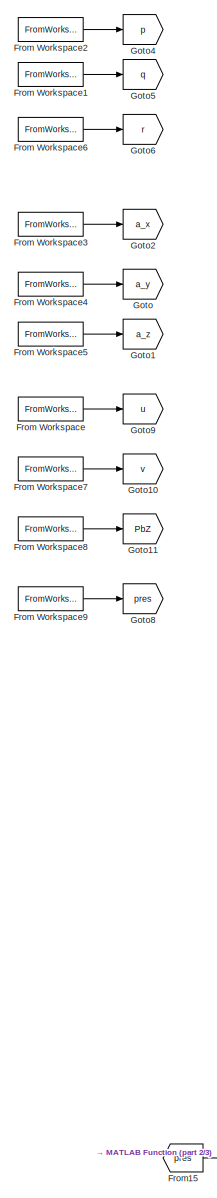
[diagram: root canvas - part 1/3, top left region]
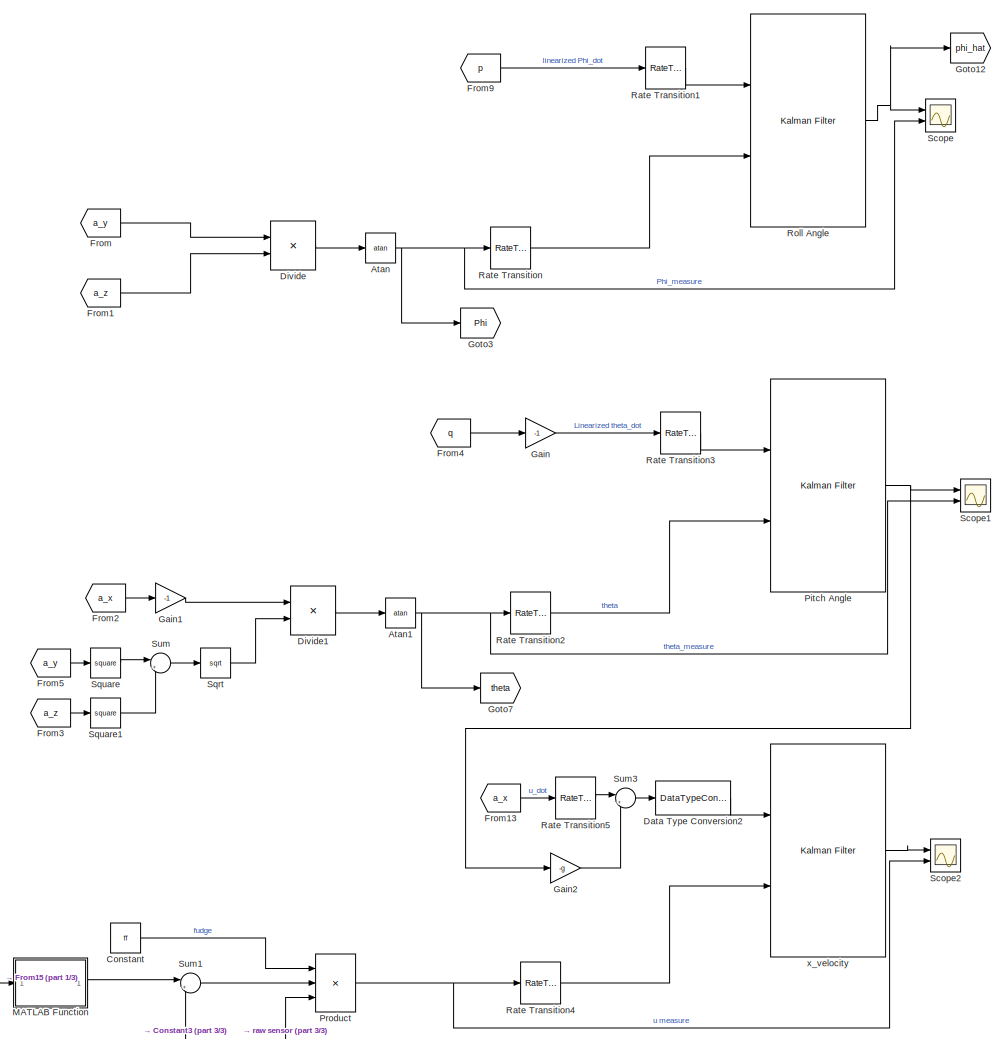
[diagram: root canvas - part 2/3, central region]
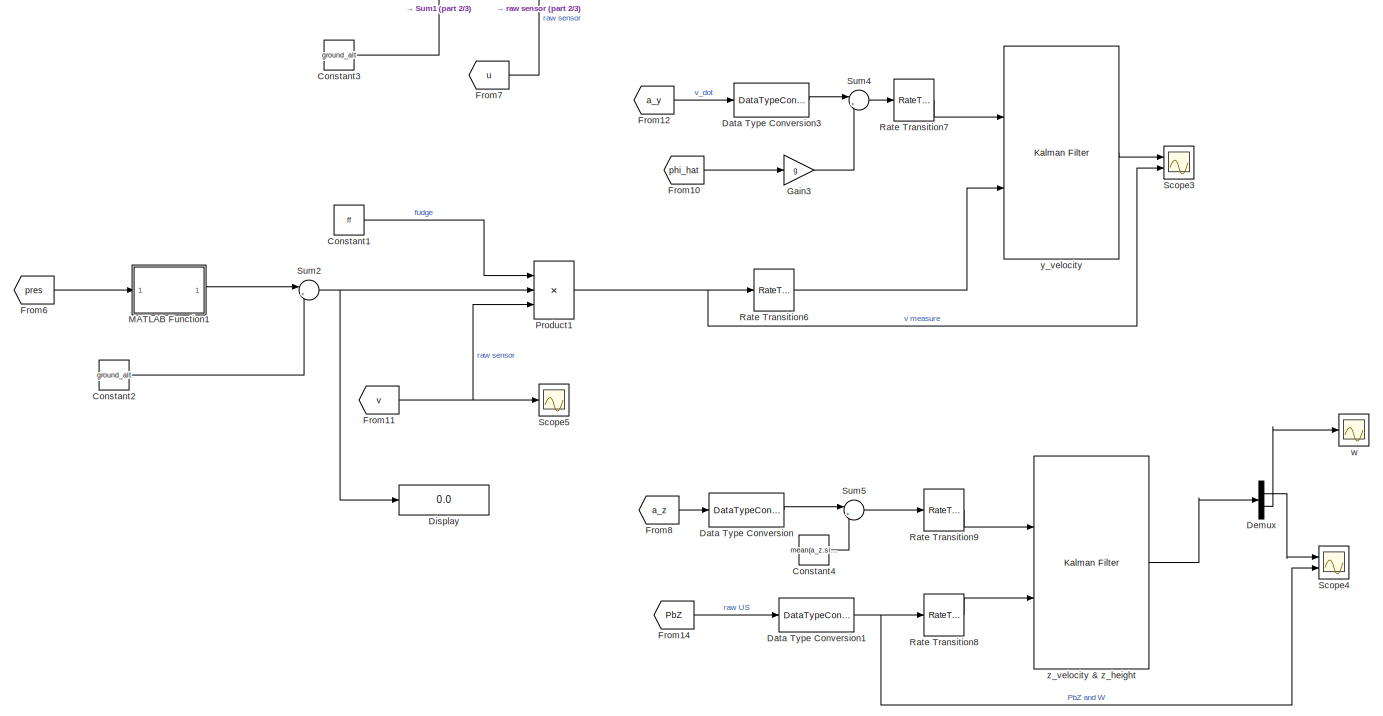
[diagram: root canvas - part 3/3, full width, bottom band]
MODEL slx_ab1d91bc375e
KIND model
CONFIG AbsTol = auto
CONFIG EnableMultiTasking = off
CONFIG FixedStep = auto
CONFIG MaxStep = auto
CONFIG MinStep = auto
CONFIG RelTol = 1e-3
CONFIG SampleTimeConstraint = Unconstrained
CONFIG SolverName = VariableStepAuto
CONFIG StartTime = 0.0
CONFIG StopTime = 10.0
BLOCK [Trigonometry] Atan
  Operator = atan
  Ports = [1, 1]
BLOCK [Trigonometry] Atan1
  Operator = atan
  Ports = [1, 1]
BLOCK [Constant] Constant
  Value = ff
BLOCK [Constant] Constant1
  Value = ff
BLOCK [Constant] Constant2
  Value = ground_alt
BLOCK [Constant] Constant3
  Value = ground_alt
BLOCK [Constant] Constant4
  Value = mean(a_z.signals.values)
BLOCK [DataTypeConversion] Data Type Conversion
  OutDataTypeStr = double
  RndMeth = Floor
  SaturateOnIntegerOverflow = off
BLOCK [DataTypeConversion] Data Type Conversion1
  OutDataTypeStr = double
  RndMeth = Floor
  SaturateOnIntegerOverflow = off
BLOCK [DataTypeConversion] Data Type Conversion2
  OutDataTypeStr = double
  RndMeth = Floor
  SaturateOnIntegerOverflow = off
BLOCK [DataTypeConversion] Data Type Conversion3
  OutDataTypeStr = double
  RndMeth = Floor
  SaturateOnIntegerOverflow = off
BLOCK [Demux] Demux
  Outputs = 2
  Ports = [1, 2]
BLOCK [Display] Display
  Decimation = 1
  Ports = [1]
BLOCK [Product] Divide
  Inputs = */
  Ports = [2, 1]
BLOCK [Product] Divide1
  Inputs = */
  Ports = [2, 1]
BLOCK [From] From
  GotoTag = a_y
BLOCK [FromWorkspace] From Workspace
  VariableName = u
BLOCK [FromWorkspace] From Workspace1
  VariableName = q
BLOCK [FromWorkspace] From Workspace2
  VariableName = p
BLOCK [FromWorkspace] From Workspace3
  VariableName = a_x
BLOCK [FromWorkspace] From Workspace4
  VariableName = a_y
BLOCK [FromWorkspace] From Workspace5
  VariableName = a_z
BLOCK [FromWorkspace] From Workspace6
  VariableName = r
BLOCK [FromWorkspace] From Workspace7
  VariableName = v
BLOCK [FromWorkspace] From Workspace8
  VariableName = PbZ
BLOCK [FromWorkspace] From Workspace9
  VariableName = pressure
BLOCK [From] From1
  GotoTag = a_z
BLOCK [From] From10
  GotoTag = phi_hat
BLOCK [From] From11
  GotoTag = v
BLOCK [From] From12
  GotoTag = a_y
BLOCK [From] From13
  GotoTag = a_x
BLOCK [From] From14
  GotoTag = PbZ
BLOCK [From] From15
  GotoTag = pres
BLOCK [From] From2
  GotoTag = a_x
BLOCK [From] From3
  GotoTag = a_z
BLOCK [From] From4
  GotoTag = q
BLOCK [From] From5
  GotoTag = a_y
BLOCK [From] From6
  GotoTag = pres
BLOCK [From] From7
  GotoTag = u
BLOCK [From] From8
  GotoTag = a_z
BLOCK [From] From9
  GotoTag = p
BLOCK [Gain] Gain
  Gain = -1
BLOCK [Gain] Gain1
  Gain = -1
BLOCK [Gain] Gain2
  Gain = -g
BLOCK [Gain] Gain3
  Gain = g
BLOCK [Goto] Goto
  GotoTag = a_y
BLOCK [Goto] Goto1
  GotoTag = a_z
BLOCK [Goto] Goto10
  GotoTag = v
BLOCK [Goto] Goto11
  GotoTag = PbZ
BLOCK [Goto] Goto12
  GotoTag = phi_hat
BLOCK [Goto] Goto2
  GotoTag = a_x
BLOCK [Goto] Goto3
  GotoTag = Phi
BLOCK [Goto] Goto4
  GotoTag = p
BLOCK [Goto] Goto5
  GotoTag = q
BLOCK [Goto] Goto6
  GotoTag = r
BLOCK [Goto] Goto7
  GotoTag = theta
BLOCK [Goto] Goto8
  GotoTag = pres
BLOCK [Goto] Goto9
  GotoTag = u
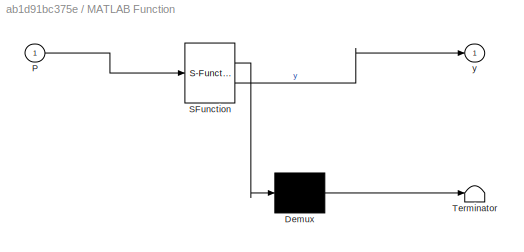
BLOCK [SubSystem] MATLAB Function
  ErrorFcn = Stateflow.Translate.translate
  PermitHierarchicalResolution = ExplicitOnly
  Ports = [1, 1]
  RequestExecContextInheritance = off
  SFBlockType = MATLAB Function
  TreatAsAtomicUnit = on
BLOCK [Demux] MATLAB Function/ Demux 
  Outputs = 1
  Ports = [1, 1]
BLOCK [S-Function] MATLAB Function/ SFunction 
  EnableBusSupport = on
  FunctionName = sf_sfun
  PortCounts = [1 2]
  Ports = [1, 2]
  SFcnIsStateOwnerBlock = off
  SFunctionDeploymentMode = off
  Tag = Stateflow S-Function 2
BLOCK [Terminator] MATLAB Function/ Terminator 
BLOCK [Inport] MATLAB Function/P
BLOCK [Outport] MATLAB Function/y
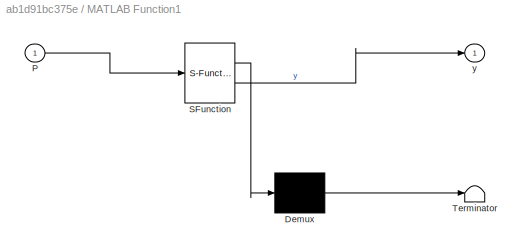
BLOCK [SubSystem] MATLAB Function1
  ErrorFcn = Stateflow.Translate.translate
  PermitHierarchicalResolution = ExplicitOnly
  Ports = [1, 1]
  RequestExecContextInheritance = off
  SFBlockType = MATLAB Function
  TreatAsAtomicUnit = on
BLOCK [Demux] MATLAB Function1/ Demux 
  Outputs = 1
  Ports = [1, 1]
BLOCK [S-Function] MATLAB Function1/ SFunction 
  EnableBusSupport = on
  FunctionName = sf_sfun
  PortCounts = [1 2]
  Ports = [1, 2]
  SFcnIsStateOwnerBlock = off
  SFunctionDeploymentMode = off
  Tag = Stateflow S-Function 1
BLOCK [Terminator] MATLAB Function1/ Terminator 
BLOCK [Inport] MATLAB Function1/P
BLOCK [Outport] MATLAB Function1/y
BLOCK [Reference] Pitch Angle  REF=ctrlSharedLib/Kalman Filter
  Ports = [2, 1]
  SourceBlock = ctrlSharedLib/Kalman Filter
  SourceProductBaseCode = CT,ID
  SourceType = ctrlKalmanFilter
BLOCK [Product] Product
  Inputs = 3
  Ports = [3, 1]
BLOCK [Product] Product1
  Inputs = 3
  Ports = [3, 1]
BLOCK [RateTransition] Rate Transition
  OutPortSampleTime = 1/200
BLOCK [RateTransition] Rate Transition1
  OutPortSampleTime = 1/200
BLOCK [RateTransition] Rate Transition2
  OutPortSampleTime = 1/200
BLOCK [RateTransition] Rate Transition3
  OutPortSampleTime = 1/200
BLOCK [RateTransition] Rate Transition4
  OutPortSampleTime = 1/200
BLOCK [RateTransition] Rate Transition5
  OutPortSampleTime = 1/200
BLOCK [RateTransition] Rate Transition6
  OutPortSampleTime = 1/200
BLOCK [RateTransition] Rate Transition7
  OutPortSampleTime = 1/200
BLOCK [RateTransition] Rate Transition8
  OutPortSampleTime = 1/200
BLOCK [RateTransition] Rate Transition9
  OutPortSampleTime = 1/200
BLOCK [Reference] Roll Angle  REF=ctrlSharedLib/Kalman Filter
  Ports = [2, 1]
  SourceBlock = ctrlSharedLib/Kalman Filter
  SourceProductBaseCode = CT,ID
  SourceType = ctrlKalmanFilter
BLOCK [Scope] Scope
  Floating = off
  NumInputPorts = 2
  Ports = [2]
  ScopeSpecificationString = Simulink.scopes.TimeScopeBlockCfg('CurrentConfiguration', extmgr.ConfigurationSet(extmgr.Configuration('Core','General UI',true),extmgr.Configuration('Core','Source UI',true),extmgr.Configuration('Sources','WiredSimulink',true),extmgr.Configuration('Visuals','Time Domain',true,'SerializedDisplays',{struct('MinYLimReal','-0.88129','MaxYLimReal','1.18508','YLabelReal','','MinYLimMag','0.00000','MaxY...<+1435ch>
BLOCK [Scope] Scope1
  Floating = off
  NumInputPorts = 2
  Ports = [2]
  ScopeSpecificationString = Simulink.scopes.TimeScopeBlockCfg('CurrentConfiguration', extmgr.ConfigurationSet(extmgr.Configuration('Core','General UI',true),extmgr.Configuration('Core','Source UI',true),extmgr.Configuration('Sources','WiredSimulink',true,'DataLoggingVariableName','ScopeData1'),extmgr.Configuration('Visuals','Time Domain',true,'SerializedDisplays',{struct('MinYLimReal','-0.82118','MaxYLimReal','1.01964','YLab...<+1507ch>
BLOCK [Scope] Scope2
  Floating = off
  NumInputPorts = 2
  Ports = [2]
  ScopeSpecificationString = Simulink.scopes.TimeScopeBlockCfg('CurrentConfiguration', extmgr.ConfigurationSet(extmgr.Configuration('Core','General UI',true),extmgr.Configuration('Core','Source UI',true),extmgr.Configuration('Sources','WiredSimulink',true,'DataLoggingVariableName','ScopeData2'),extmgr.Configuration('Visuals','Time Domain',true,'SerializedDisplays',{struct('MinYLimReal','-26.08949','MaxYLimReal','27.26888','YL...<+1459ch>
BLOCK [Scope] Scope3
  Floating = off
  NumInputPorts = 2
  Ports = [2]
  ScopeSpecificationString = Simulink.scopes.TimeScopeBlockCfg('CurrentConfiguration', extmgr.ConfigurationSet(extmgr.Configuration('Core','General UI',true),extmgr.Configuration('Core','Source UI',true),extmgr.Configuration('Sources','WiredSimulink',true,'DataLoggingVariableName','ScopeData3'),extmgr.Configuration('Visuals','Time Domain',true,'SerializedDisplays',{struct('MinYLimReal','-28.33406','MaxYLimReal','29.53926','YL...<+1459ch>
BLOCK [Scope] Scope4
  Floating = off
  NumInputPorts = 2
  Ports = [2]
  ScopeSpecificationString = Simulink.scopes.TimeScopeBlockCfg('CurrentConfiguration', extmgr.ConfigurationSet(extmgr.Configuration('Core','General UI',true),extmgr.Configuration('Core','Source UI',true),extmgr.Configuration('Sources','WiredSimulink',true,'DataLoggingVariableName','ScopeData2'),extmgr.Configuration('Visuals','Time Domain',true,'SerializedDisplays',{struct('MinYLimReal','0.01593','MaxYLimReal','0.93339','YLabe...<+1472ch>
BLOCK [Scope] Scope5
  Floating = off
  NumInputPorts = 1
  Ports = [1]
  ScopeSpecificationString = Simulink.scopes.TimeScopeBlockCfg('CurrentConfiguration', extmgr.ConfigurationSet(extmgr.Configuration('Core','General UI',true),extmgr.Configuration('Core','Source UI',true),extmgr.Configuration('Sources','WiredSimulink',true,'DataLoggingVariableName','ScopeData1'),extmgr.Configuration('Visuals','Time Domain',true,'SerializedDisplays',{struct('MinYLimReal','-0.40564','MaxYLimReal','0.42316','YLab...<+1398ch>
BLOCK [Sqrt] Sqrt
BLOCK [Math] Square
  Operator = square
  Ports = [1, 1]
BLOCK [Math] Square1
  Operator = square
  Ports = [1, 1]
BLOCK [Sum] Sum
  Inputs = |++
  Ports = [2, 1]
BLOCK [Sum] Sum1
  Inputs = |+-
  Ports = [2, 1]
BLOCK [Sum] Sum2
  Inputs = |+-
  Ports = [2, 1]
BLOCK [Sum] Sum3
  Inputs = |++
  Ports = [2, 1]
BLOCK [Sum] Sum4
  Inputs = |++
  Ports = [2, 1]
BLOCK [Sum] Sum5
  Inputs = |+-
  Ports = [2, 1]
BLOCK [Scope] w
  Floating = off
  NumInputPorts = 1
  Ports = [1]
  ScopeSpecificationString = Simulink.scopes.TimeScopeBlockCfg('CurrentConfiguration', extmgr.ConfigurationSet(extmgr.Configuration('Core','General UI',true),extmgr.Configuration('Core','Source UI',true),extmgr.Configuration('Sources','WiredSimulink',true,'DataLoggingVariableName','ScopeData1'),extmgr.Configuration('Visuals','Time Domain',true,'SerializedDisplays',{struct('MinYLimReal','-0.1244','MaxYLimReal','0.76366','YLabe...<+1393ch>
BLOCK [Reference] x_velocity  REF=ctrlSharedLib/Kalman Filter
  Ports = [2, 1]
  SourceBlock = ctrlSharedLib/Kalman Filter
  SourceProductBaseCode = CT,ID
  SourceType = ctrlKalmanFilter
BLOCK [Reference] y_velocity  REF=ctrlSharedLib/Kalman Filter
  Ports = [2, 1]
  SourceBlock = ctrlSharedLib/Kalman Filter
  SourceProductBaseCode = CT,ID
  SourceType = ctrlKalmanFilter
BLOCK [Reference] z_velocity & z_height  REF=ctrlSharedLib/Kalman Filter
  Ports = [2, 1]
  SourceBlock = ctrlSharedLib/Kalman Filter
  SourceProductBaseCode = CT,ID
  SourceType = ctrlKalmanFilter
NET Atan1:1 -> Goto7:1, Rate Transition2:1, Scope1:2
NET Atan:1 -> Goto3:1, Rate Transition:1, Scope:2
LINE Constant1:1 -> Product1:1
LINE Constant2:1 -> Sum2:2
LINE Constant3:1 -> Sum1:2
LINE Constant4:1 -> Sum5:2
LINE Constant:1 -> Product:1
NET Data Type Conversion1:1 -> Rate Transition8:1, Scope4:2
LINE Data Type Conversion2:1 -> x_velocity:1
LINE Data Type Conversion3:1 -> Sum4:1
LINE Data Type Conversion:1 -> Sum5:1
LINE Demux:1 -> Scope4:1
LINE Demux:2 -> w:1
LINE Divide1:1 -> Atan1:1
LINE Divide:1 -> Atan:1
LINE From Workspace1:1 -> Goto5:1
LINE From Workspace2:1 -> Goto4:1
LINE From Workspace3:1 -> Goto2:1
LINE From Workspace4:1 -> Goto:1
LINE From Workspace5:1 -> Goto1:1
LINE From Workspace6:1 -> Goto6:1
LINE From Workspace7:1 -> Goto10:1
LINE From Workspace8:1 -> Goto11:1
LINE From Workspace9:1 -> Goto8:1
LINE From Workspace:1 -> Goto9:1
LINE From10:1 -> Gain3:1
NET From11:1 -> Product1:3, Scope5:1
LINE From12:1 -> Data Type Conversion3:1
LINE From13:1 -> Rate Transition5:1
LINE From14:1 -> Data Type Conversion1:1
LINE From15:1 -> MATLAB Function:1
LINE From1:1 -> Divide:2
LINE From2:1 -> Gain1:1
LINE From3:1 -> Square1:1
LINE From4:1 -> Gain:1
LINE From5:1 -> Square:1
LINE From6:1 -> MATLAB Function1:1
LINE From7:1 -> Product:3
LINE From8:1 -> Data Type Conversion:1
LINE From9:1 -> Rate Transition1:1
LINE From:1 -> Divide:1
LINE Gain1:1 -> Divide1:1
LINE Gain2:1 -> Sum3:2
LINE Gain3:1 -> Sum4:2
LINE Gain:1 -> Rate Transition3:1
LINE MATLAB Function1:1 -> Sum2:1
LINE MATLAB Function:1 -> Sum1:1
NET Pitch Angle:1 -> Gain2:1, Scope1:1
NET Product1:1 -> Rate Transition6:1, Scope3:2
NET Product:1 -> Rate Transition4:1, Scope2:2
LINE Rate Transition1:1 -> Roll Angle:1
LINE Rate Transition2:1 -> Pitch Angle:2
LINE Rate Transition3:1 -> Pitch Angle:1
LINE Rate Transition4:1 -> x_velocity:2
LINE Rate Transition5:1 -> Sum3:1
LINE Rate Transition6:1 -> y_velocity:2
LINE Rate Transition7:1 -> y_velocity:1
LINE Rate Transition8:1 -> z_velocity & z_height:2
LINE Rate Transition9:1 -> z_velocity & z_height:1
LINE Rate Transition:1 -> Roll Angle:2
NET Roll Angle:1 -> Goto12:1, Scope:1
LINE Sqrt:1 -> Divide1:2
LINE Square1:1 -> Sum:2
LINE Square:1 -> Sum:1
LINE Sum1:1 -> Product:2
NET Sum2:1 -> Display:1, Product1:2
LINE Sum3:1 -> Data Type Conversion2:1
LINE Sum4:1 -> Rate Transition7:1
LINE Sum5:1 -> Rate Transition9:1
LINE Sum:1 -> Sqrt:1
LINE x_velocity:1 -> Scope2:1
LINE y_velocity:1 -> Scope3:1
LINE z_velocity & z_height:1 -> Demux:1
note: NET lines group one-source signal fan-out (src -> all destinations, sorted); 1:1 wires keep LINE
CHART MATLAB Function states=1 transitions=1
  STATE_LABEL 'eML_blk_kernel()'
  STATE_LABEL 'SCRIPT:\nfunction y = z_pres(P)\ng = 9.8; % acceleration due to gravity m/s^2\nM = 0.0289644; % molar mass of air in kg/mol\nR = 8.31432; % universal gas constant Nm/mol/k\np0 = 101325; % Pa standard pressure\n\nT =288.15;  % Assumed temperature in kelvin\nK =-g*M/R/T;\nz_hypsometric = 1/K*log(P/p0);\ny = z_hypsometric;\n'
CHART MATLAB Function1 states=1 transitions=1
  STATE_LABEL 'eML_blk_kernel()'
  STATE_LABEL 'SCRIPT:\nfunction y = z_pres(P)\ng = 9.8; % acceleration due to gravity m/s^2\nM = 0.0289644; % molar mass of air in kg/mol\nR = 8.31432; % universal gas constant Nm/mol/k\np0 = 101325; % Pa standard pressure\n\nT =288.15;  % Assumed temperature in kelvin\nK =-g*M/R/T;\nz_hypsometric = 1/K*log(P/p0);\ny = z_hypsometric;\n'
CHART  states=0 transitions=0
CHART  states=0 transitions=0
